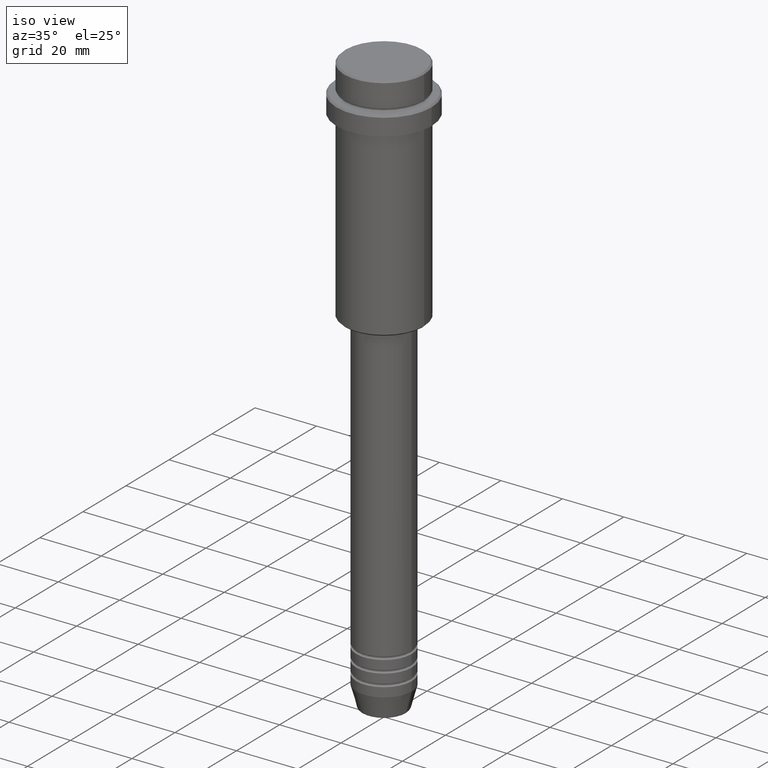
[diagram: clean part render]
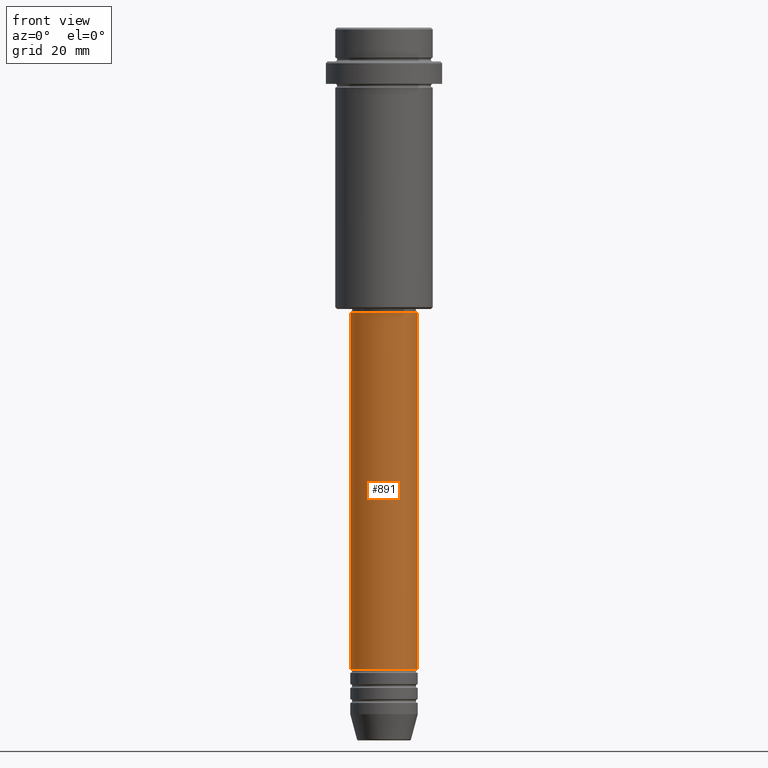
[diagram: tour spotlight — one face highlighted and labeled with its STEP entity id]
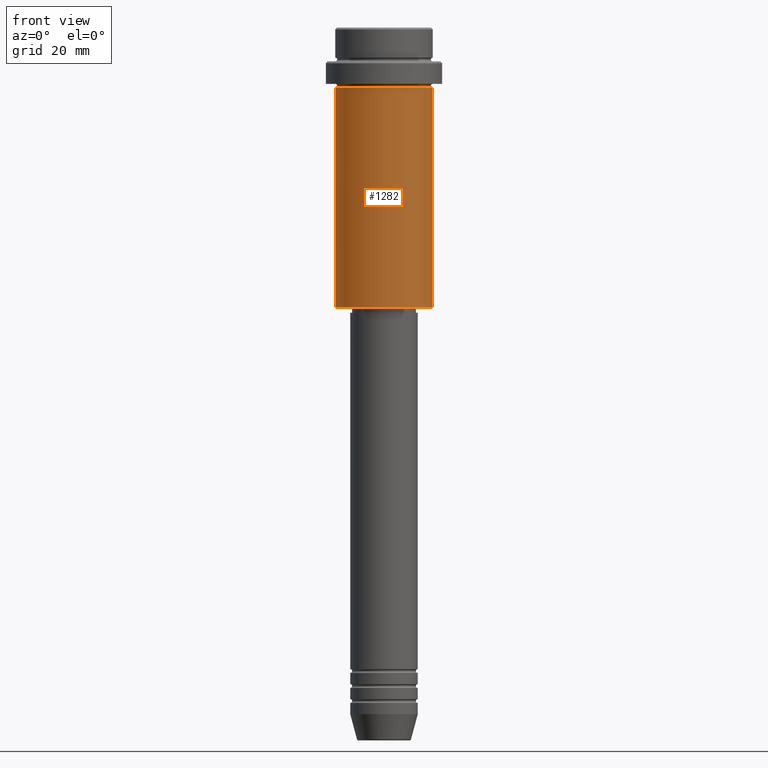
[diagram: tour spotlight — one face highlighted and labeled with its STEP entity id]
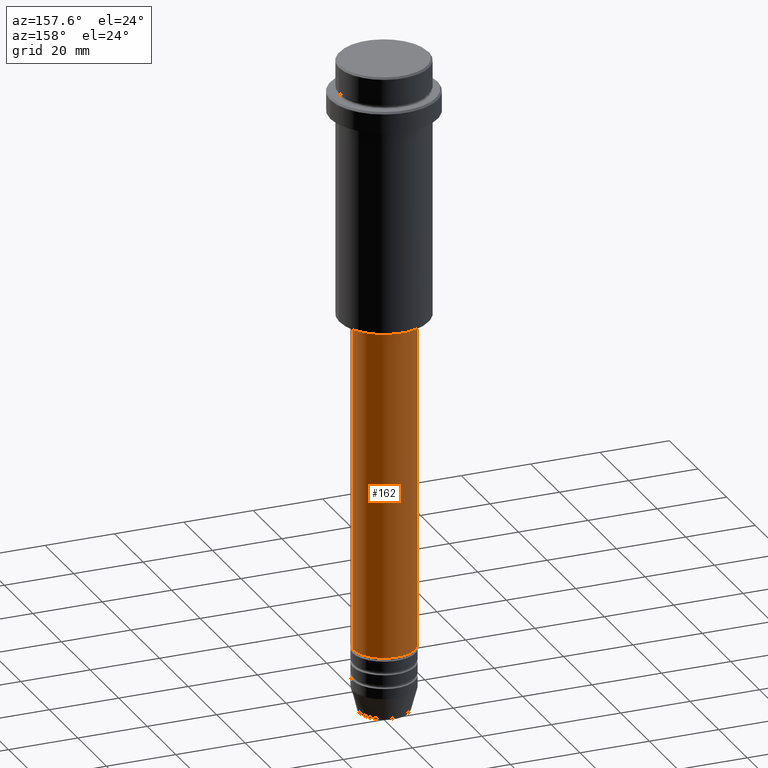
[diagram: tour spotlight — one face highlighted and labeled with its STEP entity id]
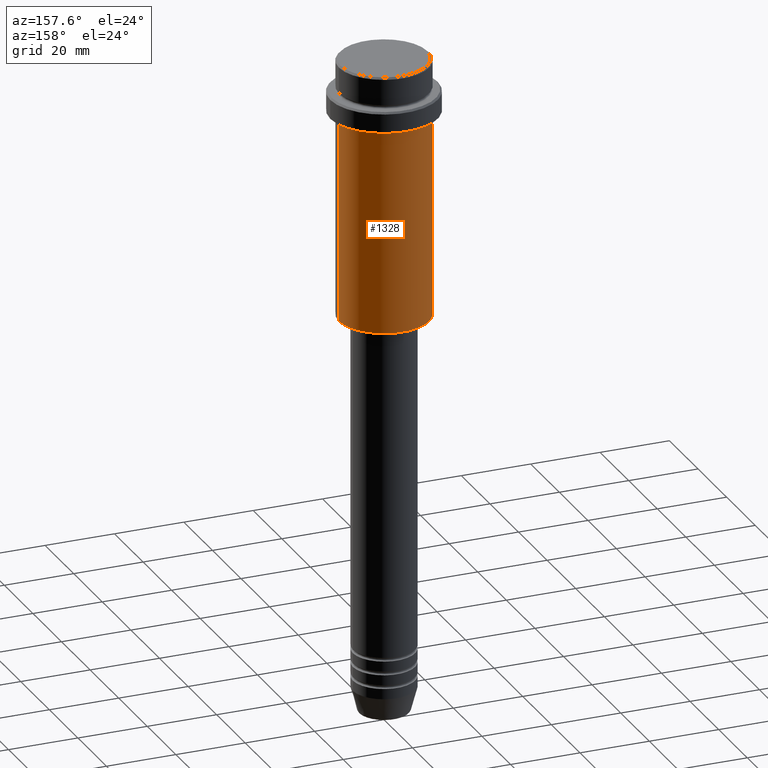
[diagram: tour spotlight — one face highlighted and labeled with its STEP entity id]
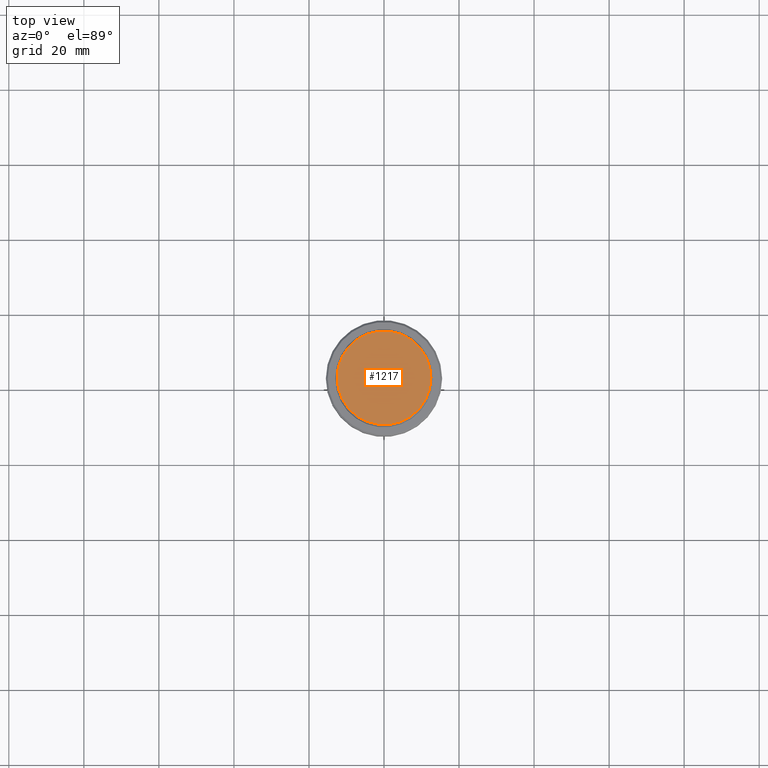
[diagram: tour spotlight — one face highlighted and labeled with its STEP entity id]
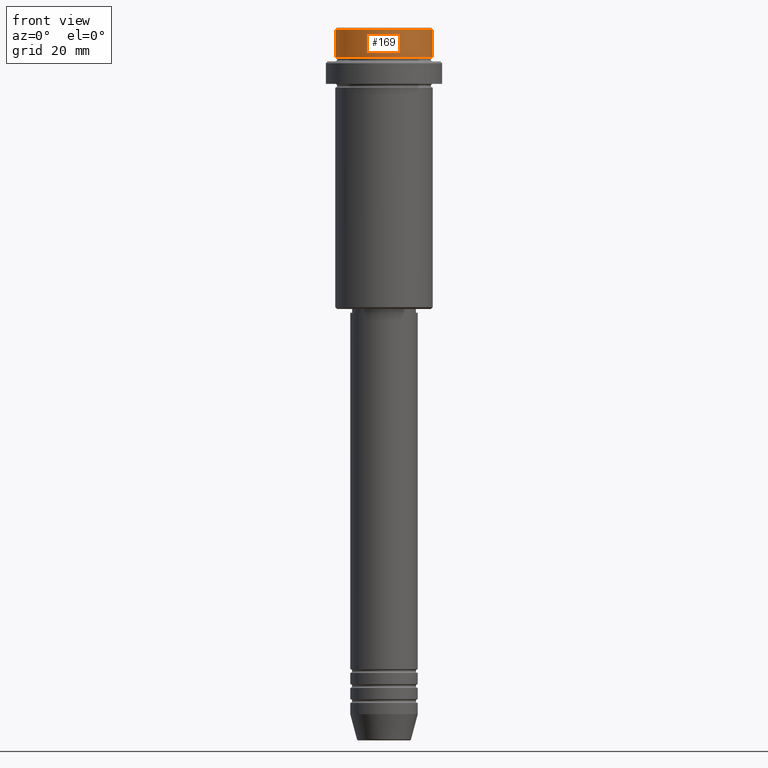
[diagram: tour spotlight — one face highlighted and labeled with its STEP entity id]
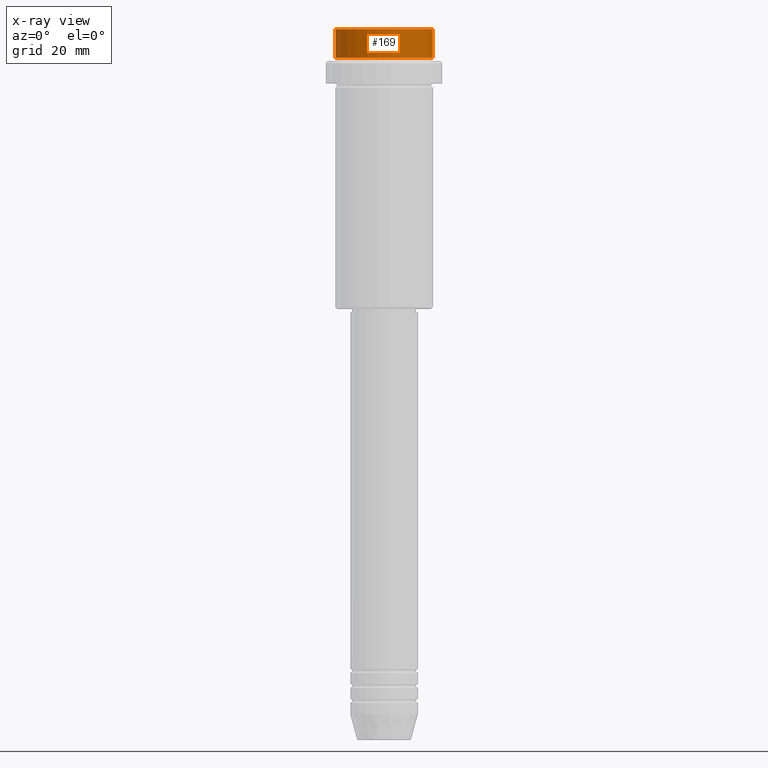
[diagram: x-ray of the same camera — body ghosted, this tour face saturated]
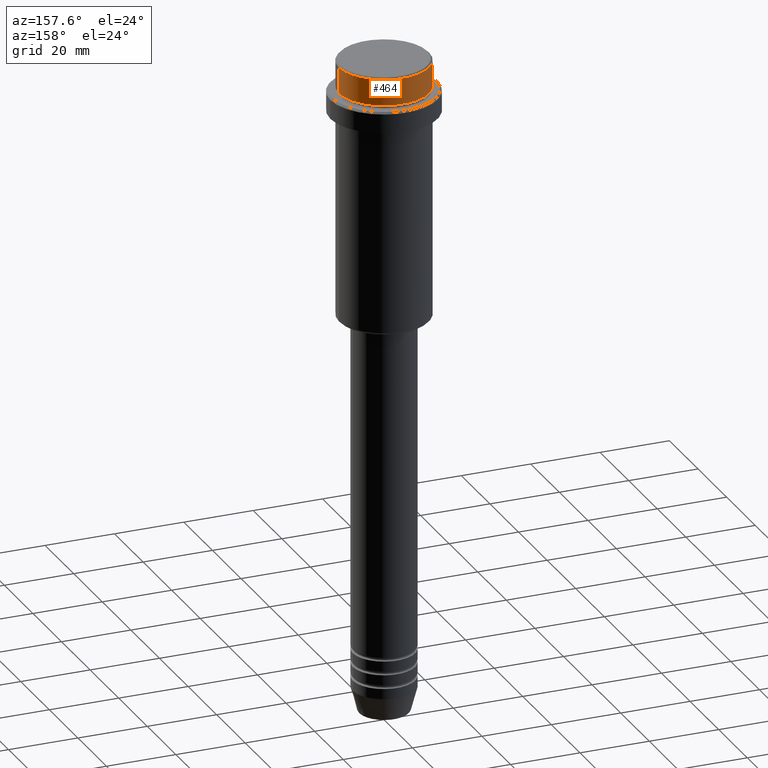
[diagram: tour spotlight — one face highlighted and labeled with its STEP entity id]
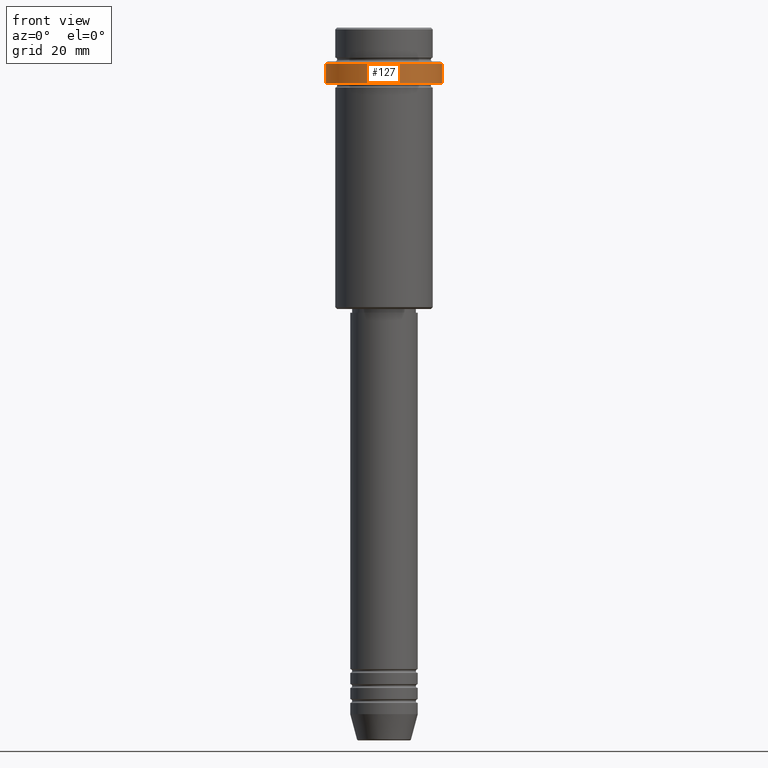
[diagram: tour spotlight — one face highlighted and labeled with its STEP entity id]
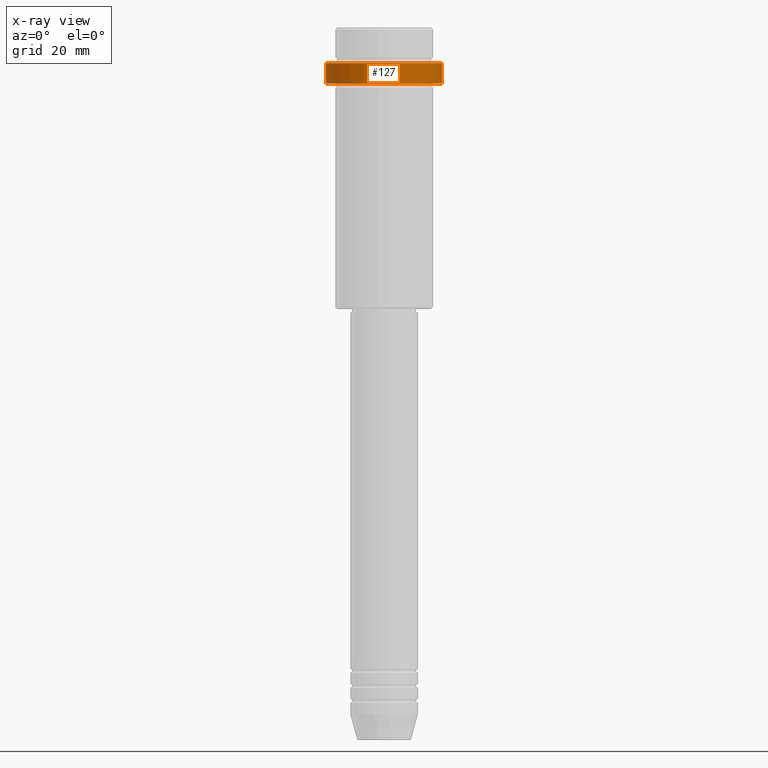
[diagram: x-ray of the same camera — body ghosted, this tour face saturated]
A machine part: a face-by-face anatomy tour. The part has 52 B-rep faces; the first image is the clean iso view, then the 8 largest visible faces are spotlighted one at a time (largest first), each with its STEP entity span.

Face 1 — front view, entity #891. In plain terms, the highlighted cylindrical surface (edge-blend (fillet) strip) has radius 9 mm, axis along (-0, -0, 1).
Definition (entity closure, byte-faithful):
#53 = CARTESIAN_POINT ( 'NONE',  ( 0.000000000000000000, 0.000000000000000000, -76.00000000000001421 ) ) ;
#142 = LINE ( 'NONE', #806, #608 ) ;
#145 = ORIENTED_EDGE ( 'NONE', *, *, #456, .F. ) ;
#185 = EDGE_LOOP ( 'NONE', ( #145, #928, #734, #1365 ) ) ;
#206 = EDGE_CURVE ( 'NONE', #576, #395, #584, .T. ) ;
#207 = EDGE_CURVE ( 'NONE', #1271, #395, #912, .T. ) ;
#292 = AXIS2_PLACEMENT_3D ( 'NONE', #1011, #795, #339 ) ;
#339 = DIRECTION ( 'NONE',  ( 1.000000000000000000, 0.000000000000000000, 0.000000000000000000 ) ) ;
#361 = AXIS2_PLACEMENT_3D ( 'NONE', #53, #1265, #1135 ) ;
#395 = VERTEX_POINT ( 'NONE', #449 ) ;
#449 = CARTESIAN_POINT ( 'NONE',  ( 9.000000000000001776, 0.000000000000000000, -76.00000000000001421 ) ) ;
#456 = EDGE_CURVE ( 'NONE', #716, #1271, #142, .T. ) ;
#472 = DIRECTION ( 'NONE',  ( -0.000000000000000000, -0.000000000000000000, 1.000000000000000000 ) ) ;
#491 = DIRECTION ( 'NONE',  ( -0.000000000000000000, -0.000000000000000000, 1.000000000000000000 ) ) ;
#514 = CARTESIAN_POINT ( 'NONE',  ( 9.000000000000000000, 0.000000000000000000, -170.9999999999999147 ) ) ;
#567 = CYLINDRICAL_SURFACE ( 'NONE', #292, 9.000000000000001776 ) ;
#576 = VERTEX_POINT ( 'NONE', #514 ) ;
#584 = LINE ( 'NONE', #817, #720 ) ;
#608 = VECTOR ( 'NONE', #472, 1000.000000000000000 ) ;
#716 = VERTEX_POINT ( 'NONE', #1083 ) ;
#720 = VECTOR ( 'NONE', #491, 1000.000000000000000 ) ;
#734 = ORIENTED_EDGE ( 'NONE', *, *, #206, .T. ) ;
#781 = EDGE_CURVE ( 'NONE', #716, #576, #1308, .T. ) ;
#795 = DIRECTION ( 'NONE',  ( -0.000000000000000000, -0.000000000000000000, 1.000000000000000000 ) ) ;
#806 = CARTESIAN_POINT ( 'NONE',  ( -9.000000000000001776, 1.102182119232617911E-15, 0.000000000000000000 ) ) ;
#817 = CARTESIAN_POINT ( 'NONE',  ( 9.000000000000001776, 0.000000000000000000, 0.000000000000000000 ) ) ;
#859 = DIRECTION ( 'NONE',  ( 1.000000000000000000, 0.000000000000000000, 0.000000000000000000 ) ) ;
#891 = ADVANCED_FACE ( 'NONE', ( #1018 ), #567, .T. ) ;
#912 = CIRCLE ( 'NONE', #361, 9.000000000000001776 ) ;
#928 = ORIENTED_EDGE ( 'NONE', *, *, #781, .T. ) ;
#1011 = CARTESIAN_POINT ( 'NONE',  ( 0.000000000000000000, 0.000000000000000000, 0.000000000000000000 ) ) ;
#1018 = FACE_OUTER_BOUND ( 'NONE', #185, .T. ) ;
#1052 = AXIS2_PLACEMENT_3D ( 'NONE', #1413, #1206, #859 ) ;
#1083 = CARTESIAN_POINT ( 'NONE',  ( -9.000000000000000000, 1.102182119232617714E-15, -170.9999999999999147 ) ) ;
#1135 = DIRECTION ( 'NONE',  ( 1.000000000000000000, 0.000000000000000000, 0.000000000000000000 ) ) ;
#1206 = DIRECTION ( 'NONE',  ( -0.000000000000000000, -0.000000000000000000, 1.000000000000000000 ) ) ;
#1221 = CARTESIAN_POINT ( 'NONE',  ( -9.000000000000001776, 1.102182119232617911E-15, -76.00000000000001421 ) ) ;
#1265 = DIRECTION ( 'NONE',  ( -0.000000000000000000, -0.000000000000000000, 1.000000000000000000 ) ) ;
#1271 = VERTEX_POINT ( 'NONE', #1221 ) ;
#1308 = CIRCLE ( 'NONE', #1052, 9.000000000000000000 ) ;
#1365 = ORIENTED_EDGE ( 'NONE', *, *, #207, .F. ) ;
#1413 = CARTESIAN_POINT ( 'NONE',  ( 0.000000000000000000, 0.000000000000000000, -170.9999999999999147 ) ) ;

Face 2 — front view, entity #1282. In plain terms, the highlighted cylindrical surface (partial cylindrical patch) has radius 13 mm, axis along (-0, -0, 1).
Definition (entity closure, byte-faithful):
#79 = AXIS2_PLACEMENT_3D ( 'NONE', #950, #1085, #1409 ) ;
#100 = CARTESIAN_POINT ( 'NONE',  ( 13.00000000000000000, 0.000000000000000000, 0.000000000000000000 ) ) ;
#113 = DIRECTION ( 'NONE',  ( -0.000000000000000000, -0.000000000000000000, 1.000000000000000000 ) ) ;
#208 = CARTESIAN_POINT ( 'NONE',  ( -13.00000000000000000, 1.592040838891559095E-15, 0.000000000000000000 ) ) ;
#217 = ORIENTED_EDGE ( 'NONE', *, *, #268, .F. ) ;
#230 = CYLINDRICAL_SURFACE ( 'NONE', #851, 13.00000000000000000 ) ;
#264 = LINE ( 'NONE', #100, #939 ) ;
#268 = EDGE_CURVE ( 'NONE', #895, #948, #962, .T. ) ;
#324 = EDGE_CURVE ( 'NONE', #599, #505, #1261, .T. ) ;
#332 = ORIENTED_EDGE ( 'NONE', *, *, #324, .T. ) ;
#462 = CARTESIAN_POINT ( 'NONE',  ( -13.00000000000000000, 1.592040838891559095E-15, -16.00000000000000000 ) ) ;
#505 = VERTEX_POINT ( 'NONE', #926 ) ;
#525 = EDGE_CURVE ( 'NONE', #505, #948, #264, .T. ) ;
#540 = DIRECTION ( 'NONE',  ( -0.000000000000000000, -0.000000000000000000, 1.000000000000000000 ) ) ;
#570 = AXIS2_PLACEMENT_3D ( 'NONE', #639, #1068, #869 ) ;
#599 = VERTEX_POINT ( 'NONE', #712 ) ;
#639 = CARTESIAN_POINT ( 'NONE',  ( 0.000000000000000000, 0.000000000000000000, -74.50000000000001421 ) ) ;
#664 = CARTESIAN_POINT ( 'NONE',  ( 0.000000000000000000, 0.000000000000000000, 0.000000000000000000 ) ) ;
#712 = CARTESIAN_POINT ( 'NONE',  ( -13.00000000000000000, 1.592040838891559095E-15, -74.50000000000001421 ) ) ;
#851 = AXIS2_PLACEMENT_3D ( 'NONE', #664, #113, #1090 ) ;
#869 = DIRECTION ( 'NONE',  ( -1.000000000000000000, 0.000000000000000000, 0.000000000000000000 ) ) ;
#895 = VERTEX_POINT ( 'NONE', #462 ) ;
#921 = ORIENTED_EDGE ( 'NONE', *, *, #525, .T. ) ;
#926 = CARTESIAN_POINT ( 'NONE',  ( 13.00000000000000000, 0.000000000000000000, -74.50000000000001421 ) ) ;
#939 = VECTOR ( 'NONE', #540, 1000.000000000000000 ) ;
#948 = VERTEX_POINT ( 'NONE', #953 ) ;
#950 = CARTESIAN_POINT ( 'NONE',  ( 0.000000000000000000, 0.000000000000000000, -16.00000000000000000 ) ) ;
#953 = CARTESIAN_POINT ( 'NONE',  ( 13.00000000000000000, 0.000000000000000000, -16.00000000000000000 ) ) ;
#962 = CIRCLE ( 'NONE', #79, 13.00000000000000000 ) ;
#996 = FACE_OUTER_BOUND ( 'NONE', #1404, .T. ) ;
#1033 = VECTOR ( 'NONE', #1109, 1000.000000000000000 ) ;
#1068 = DIRECTION ( 'NONE',  ( -0.000000000000000000, -0.000000000000000000, 1.000000000000000000 ) ) ;
#1085 = DIRECTION ( 'NONE',  ( -0.000000000000000000, -0.000000000000000000, 1.000000000000000000 ) ) ;
#1090 = DIRECTION ( 'NONE',  ( 1.000000000000000000, 0.000000000000000000, 0.000000000000000000 ) ) ;
#1109 = DIRECTION ( 'NONE',  ( -0.000000000000000000, -0.000000000000000000, 1.000000000000000000 ) ) ;
#1175 = ORIENTED_EDGE ( 'NONE', *, *, #1367, .F. ) ;
#1201 = LINE ( 'NONE', #208, #1033 ) ;
#1261 = CIRCLE ( 'NONE', #570, 13.00000000000000000 ) ;
#1282 = ADVANCED_FACE ( 'NONE', ( #996 ), #230, .T. ) ;
#1367 = EDGE_CURVE ( 'NONE', #599, #895, #1201, .T. ) ;
#1404 = EDGE_LOOP ( 'NONE', ( #1175, #332, #921, #217 ) ) ;
#1409 = DIRECTION ( 'NONE',  ( 1.000000000000000000, 0.000000000000000000, 0.000000000000000000 ) ) ;

Face 3 — auxiliary view, entity #162. In plain terms, the highlighted cylindrical surface (edge-blend (fillet) strip) has radius 9 mm, axis along (-0, -0, 1).
Definition (entity closure, byte-faithful):
#54 = ORIENTED_EDGE ( 'NONE', *, *, #206, .F. ) ;
#142 = LINE ( 'NONE', #806, #608 ) ;
#162 = ADVANCED_FACE ( 'NONE', ( #261 ), #944, .T. ) ;
#206 = EDGE_CURVE ( 'NONE', #576, #395, #584, .T. ) ;
#261 = FACE_OUTER_BOUND ( 'NONE', #757, .T. ) ;
#318 = CIRCLE ( 'NONE', #609, 9.000000000000000000 ) ;
#373 = CARTESIAN_POINT ( 'NONE',  ( 0.000000000000000000, 0.000000000000000000, 0.000000000000000000 ) ) ;
#380 = DIRECTION ( 'NONE',  ( 1.000000000000000000, 0.000000000000000000, 0.000000000000000000 ) ) ;
#382 = CIRCLE ( 'NONE', #1374, 9.000000000000001776 ) ;
#395 = VERTEX_POINT ( 'NONE', #449 ) ;
#415 = DIRECTION ( 'NONE',  ( 1.000000000000000000, 0.000000000000000000, 0.000000000000000000 ) ) ;
#427 = AXIS2_PLACEMENT_3D ( 'NONE', #373, #1247, #380 ) ;
#449 = CARTESIAN_POINT ( 'NONE',  ( 9.000000000000001776, 0.000000000000000000, -76.00000000000001421 ) ) ;
#456 = EDGE_CURVE ( 'NONE', #716, #1271, #142, .T. ) ;
#472 = DIRECTION ( 'NONE',  ( -0.000000000000000000, -0.000000000000000000, 1.000000000000000000 ) ) ;
#491 = DIRECTION ( 'NONE',  ( -0.000000000000000000, -0.000000000000000000, 1.000000000000000000 ) ) ;
#514 = CARTESIAN_POINT ( 'NONE',  ( 9.000000000000000000, 0.000000000000000000, -170.9999999999999147 ) ) ;
#531 = DIRECTION ( 'NONE',  ( 1.000000000000000000, 0.000000000000000000, 0.000000000000000000 ) ) ;
#538 = DIRECTION ( 'NONE',  ( -0.000000000000000000, -0.000000000000000000, 1.000000000000000000 ) ) ;
#576 = VERTEX_POINT ( 'NONE', #514 ) ;
#584 = LINE ( 'NONE', #817, #720 ) ;
#608 = VECTOR ( 'NONE', #472, 1000.000000000000000 ) ;
#609 = AXIS2_PLACEMENT_3D ( 'NONE', #1089, #538, #415 ) ;
#647 = CARTESIAN_POINT ( 'NONE',  ( 0.000000000000000000, 0.000000000000000000, -76.00000000000001421 ) ) ;
#716 = VERTEX_POINT ( 'NONE', #1083 ) ;
#718 = EDGE_CURVE ( 'NONE', #395, #1271, #382, .T. ) ;
#720 = VECTOR ( 'NONE', #491, 1000.000000000000000 ) ;
#757 = EDGE_LOOP ( 'NONE', ( #1103, #1276, #782, #54 ) ) ;
#779 = EDGE_CURVE ( 'NONE', #576, #716, #318, .T. ) ;
#782 = ORIENTED_EDGE ( 'NONE', *, *, #718, .F. ) ;
#806 = CARTESIAN_POINT ( 'NONE',  ( -9.000000000000001776, 1.102182119232617911E-15, 0.000000000000000000 ) ) ;
#817 = CARTESIAN_POINT ( 'NONE',  ( 9.000000000000001776, 0.000000000000000000, 0.000000000000000000 ) ) ;
#944 = CYLINDRICAL_SURFACE ( 'NONE', #427, 9.000000000000001776 ) ;
#998 = DIRECTION ( 'NONE',  ( -0.000000000000000000, -0.000000000000000000, 1.000000000000000000 ) ) ;
#1083 = CARTESIAN_POINT ( 'NONE',  ( -9.000000000000000000, 1.102182119232617714E-15, -170.9999999999999147 ) ) ;
#1089 = CARTESIAN_POINT ( 'NONE',  ( 0.000000000000000000, 0.000000000000000000, -170.9999999999999147 ) ) ;
#1103 = ORIENTED_EDGE ( 'NONE', *, *, #779, .T. ) ;
#1221 = CARTESIAN_POINT ( 'NONE',  ( -9.000000000000001776, 1.102182119232617911E-15, -76.00000000000001421 ) ) ;
#1247 = DIRECTION ( 'NONE',  ( -0.000000000000000000, -0.000000000000000000, 1.000000000000000000 ) ) ;
#1271 = VERTEX_POINT ( 'NONE', #1221 ) ;
#1276 = ORIENTED_EDGE ( 'NONE', *, *, #456, .T. ) ;
#1374 = AXIS2_PLACEMENT_3D ( 'NONE', #647, #998, #531 ) ;

Face 4 — auxiliary view, entity #1328. In plain terms, the highlighted cylindrical surface (partial cylindrical patch) has radius 13 mm, axis along (-0, -0, 1).
Definition (entity closure, byte-faithful):
#11 = CARTESIAN_POINT ( 'NONE',  ( 0.000000000000000000, 0.000000000000000000, -74.50000000000001421 ) ) ;
#68 = CARTESIAN_POINT ( 'NONE',  ( 0.000000000000000000, 0.000000000000000000, -16.00000000000000000 ) ) ;
#100 = CARTESIAN_POINT ( 'NONE',  ( 13.00000000000000000, 0.000000000000000000, 0.000000000000000000 ) ) ;
#166 = DIRECTION ( 'NONE',  ( -0.000000000000000000, -0.000000000000000000, 1.000000000000000000 ) ) ;
#190 = ORIENTED_EDGE ( 'NONE', *, *, #1291, .T. ) ;
#197 = CARTESIAN_POINT ( 'NONE',  ( 0.000000000000000000, 0.000000000000000000, 0.000000000000000000 ) ) ;
#208 = CARTESIAN_POINT ( 'NONE',  ( -13.00000000000000000, 1.592040838891559095E-15, 0.000000000000000000 ) ) ;
#264 = LINE ( 'NONE', #100, #939 ) ;
#284 = EDGE_LOOP ( 'NONE', ( #190, #444, #833, #865 ) ) ;
#308 = CYLINDRICAL_SURFACE ( 'NONE', #704, 13.00000000000000000 ) ;
#444 = ORIENTED_EDGE ( 'NONE', *, *, #1367, .T. ) ;
#448 = FACE_OUTER_BOUND ( 'NONE', #284, .T. ) ;
#462 = CARTESIAN_POINT ( 'NONE',  ( -13.00000000000000000, 1.592040838891559095E-15, -16.00000000000000000 ) ) ;
#501 = AXIS2_PLACEMENT_3D ( 'NONE', #68, #166, #1174 ) ;
#505 = VERTEX_POINT ( 'NONE', #926 ) ;
#525 = EDGE_CURVE ( 'NONE', #505, #948, #264, .T. ) ;
#540 = DIRECTION ( 'NONE',  ( -0.000000000000000000, -0.000000000000000000, 1.000000000000000000 ) ) ;
#599 = VERTEX_POINT ( 'NONE', #712 ) ;
#704 = AXIS2_PLACEMENT_3D ( 'NONE', #197, #1401, #999 ) ;
#712 = CARTESIAN_POINT ( 'NONE',  ( -13.00000000000000000, 1.592040838891559095E-15, -74.50000000000001421 ) ) ;
#768 = DIRECTION ( 'NONE',  ( -0.000000000000000000, -0.000000000000000000, 1.000000000000000000 ) ) ;
#833 = ORIENTED_EDGE ( 'NONE', *, *, #1035, .F. ) ;
#865 = ORIENTED_EDGE ( 'NONE', *, *, #525, .F. ) ;
#895 = VERTEX_POINT ( 'NONE', #462 ) ;
#926 = CARTESIAN_POINT ( 'NONE',  ( 13.00000000000000000, 0.000000000000000000, -74.50000000000001421 ) ) ;
#939 = VECTOR ( 'NONE', #540, 1000.000000000000000 ) ;
#948 = VERTEX_POINT ( 'NONE', #953 ) ;
#953 = CARTESIAN_POINT ( 'NONE',  ( 13.00000000000000000, 0.000000000000000000, -16.00000000000000000 ) ) ;
#999 = DIRECTION ( 'NONE',  ( 1.000000000000000000, 0.000000000000000000, 0.000000000000000000 ) ) ;
#1014 = CIRCLE ( 'NONE', #501, 13.00000000000000000 ) ;
#1033 = VECTOR ( 'NONE', #1109, 1000.000000000000000 ) ;
#1035 = EDGE_CURVE ( 'NONE', #948, #895, #1014, .T. ) ;
#1054 = AXIS2_PLACEMENT_3D ( 'NONE', #11, #768, #1227 ) ;
#1109 = DIRECTION ( 'NONE',  ( -0.000000000000000000, -0.000000000000000000, 1.000000000000000000 ) ) ;
#1174 = DIRECTION ( 'NONE',  ( 1.000000000000000000, 0.000000000000000000, 0.000000000000000000 ) ) ;
#1201 = LINE ( 'NONE', #208, #1033 ) ;
#1227 = DIRECTION ( 'NONE',  ( -1.000000000000000000, 0.000000000000000000, 0.000000000000000000 ) ) ;
#1291 = EDGE_CURVE ( 'NONE', #505, #599, #1335, .T. ) ;
#1328 = ADVANCED_FACE ( 'NONE', ( #448 ), #308, .T. ) ;
#1335 = CIRCLE ( 'NONE', #1054, 13.00000000000000000 ) ;
#1367 = EDGE_CURVE ( 'NONE', #599, #895, #1201, .T. ) ;
#1401 = DIRECTION ( 'NONE',  ( -0.000000000000000000, -0.000000000000000000, 1.000000000000000000 ) ) ;

Face 5 — top view, entity #1217. In plain terms, the highlighted planar face has unit normal (0, -0, 1).
Definition (entity closure, byte-faithful):
#40 = VERTEX_POINT ( 'NONE', #668 ) ;
#41 = DIRECTION ( 'NONE',  ( 1.000000000000000000, 0.000000000000000000, 0.000000000000000000 ) ) ;
#122 = EDGE_CURVE ( 'NONE', #40, #537, #516, .T. ) ;
#223 = CIRCLE ( 'NONE', #1219, 12.50000000000004086 ) ;
#256 = ORIENTED_EDGE ( 'NONE', *, *, #122, .T. ) ;
#266 = DIRECTION ( 'NONE',  ( -0.000000000000000000, -0.000000000000000000, 1.000000000000000000 ) ) ;
#386 = AXIS2_PLACEMENT_3D ( 'NONE', #765, #1303, #1319 ) ;
#438 = PLANE ( 'NONE',  #386 ) ;
#466 = DIRECTION ( 'NONE',  ( -0.000000000000000000, -0.000000000000000000, 1.000000000000000000 ) ) ;
#516 = CIRCLE ( 'NONE', #983, 12.50000000000004086 ) ;
#537 = VERTEX_POINT ( 'NONE', #880 ) ;
#603 = CARTESIAN_POINT ( 'NONE',  ( 0.000000000000000000, 0.000000000000000000, 0.000000000000000000 ) ) ;
#668 = CARTESIAN_POINT ( 'NONE',  ( -12.50000000000004086, 0.000000000000000000, 0.000000000000000000 ) ) ;
#675 = CARTESIAN_POINT ( 'NONE',  ( 0.000000000000000000, 0.000000000000000000, 0.000000000000000000 ) ) ;
#698 = ORIENTED_EDGE ( 'NONE', *, *, #835, .T. ) ;
#765 = CARTESIAN_POINT ( 'NONE',  ( 0.000000000000000000, 0.000000000000000000, 0.000000000000000000 ) ) ;
#835 = EDGE_CURVE ( 'NONE', #537, #40, #223, .T. ) ;
#864 = FACE_OUTER_BOUND ( 'NONE', #991, .T. ) ;
#880 = CARTESIAN_POINT ( 'NONE',  ( 12.50000000000004086, 1.561424668912877675E-15, 0.000000000000000000 ) ) ;
#983 = AXIS2_PLACEMENT_3D ( 'NONE', #603, #266, #1040 ) ;
#991 = EDGE_LOOP ( 'NONE', ( #256, #698 ) ) ;
#1040 = DIRECTION ( 'NONE',  ( 1.000000000000000000, 0.000000000000000000, 0.000000000000000000 ) ) ;
#1217 = ADVANCED_FACE ( 'NONE', ( #864 ), #438, .T. ) ;
#1219 = AXIS2_PLACEMENT_3D ( 'NONE', #675, #466, #41 ) ;
#1303 = DIRECTION ( 'NONE',  ( 0.000000000000000000, -0.000000000000000000, 1.000000000000000000 ) ) ;
#1319 = DIRECTION ( 'NONE',  ( 1.000000000000000000, 0.000000000000000000, 0.000000000000000000 ) ) ;

Face 6 — front view, entity #169. An x-ray twin of the same camera follows (body ghosted, this face saturated) — the face is partly hidden behind the body. In plain terms, the highlighted cylindrical surface (partial cylindrical patch) has radius 13 mm, axis along (-0, -0, 1).
Definition (entity closure, byte-faithful):
#32 = LINE ( 'NONE', #1318, #1278 ) ;
#45 = AXIS2_PLACEMENT_3D ( 'NONE', #648, #638, #1189 ) ;
#73 = DIRECTION ( 'NONE',  ( 1.000000000000000000, 0.000000000000000000, 0.000000000000000000 ) ) ;
#99 = EDGE_CURVE ( 'NONE', #975, #1399, #32, .T. ) ;
#111 = EDGE_CURVE ( 'NONE', #112, #909, #1323, .T. ) ;
#112 = VERTEX_POINT ( 'NONE', #702 ) ;
#141 = CARTESIAN_POINT ( 'NONE',  ( -12.99999999999999822, 1.592040838891558898E-15, -0.4999999999999761302 ) ) ;
#144 = DIRECTION ( 'NONE',  ( 1.000000000000000000, 0.000000000000000000, 0.000000000000000000 ) ) ;
#150 = DIRECTION ( 'NONE',  ( -0.000000000000000000, -0.000000000000000000, 1.000000000000000000 ) ) ;
#169 = ADVANCED_FACE ( 'NONE', ( #825 ), #1377, .T. ) ;
#193 = VECTOR ( 'NONE', #802, 1000.000000000000000 ) ;
#199 = CIRCLE ( 'NONE', #943, 12.99999999999999822 ) ;
#288 = EDGE_LOOP ( 'NONE', ( #398, #856, #595, #759 ) ) ;
#330 = DIRECTION ( 'NONE',  ( -0.000000000000000000, -0.000000000000000000, 1.000000000000000000 ) ) ;
#398 = ORIENTED_EDGE ( 'NONE', *, *, #111, .F. ) ;
#423 = CARTESIAN_POINT ( 'NONE',  ( 12.99999999999999822, 0.000000000000000000, -0.4999999999999761302 ) ) ;
#453 = AXIS2_PLACEMENT_3D ( 'NONE', #1140, #150, #144 ) ;
#595 = ORIENTED_EDGE ( 'NONE', *, *, #99, .T. ) ;
#638 = DIRECTION ( 'NONE',  ( -0.000000000000000000, -0.000000000000000000, 1.000000000000000000 ) ) ;
#648 = CARTESIAN_POINT ( 'NONE',  ( 0.000000000000000000, 0.000000000000000000, -7.999999999999998224 ) ) ;
#702 = CARTESIAN_POINT ( 'NONE',  ( -12.99999999999999822, 1.592040838891558898E-15, -7.999999999999998224 ) ) ;
#759 = ORIENTED_EDGE ( 'NONE', *, *, #1045, .T. ) ;
#802 = DIRECTION ( 'NONE',  ( -0.000000000000000000, -0.000000000000000000, 1.000000000000000000 ) ) ;
#825 = FACE_OUTER_BOUND ( 'NONE', #288, .T. ) ;
#856 = ORIENTED_EDGE ( 'NONE', *, *, #1354, .T. ) ;
#909 = VERTEX_POINT ( 'NONE', #141 ) ;
#943 = AXIS2_PLACEMENT_3D ( 'NONE', #1065, #1267, #73 ) ;
#975 = VERTEX_POINT ( 'NONE', #1143 ) ;
#1045 = EDGE_CURVE ( 'NONE', #1399, #909, #199, .T. ) ;
#1065 = CARTESIAN_POINT ( 'NONE',  ( 0.000000000000000000, 0.000000000000000000, -0.4999999999999761302 ) ) ;
#1140 = CARTESIAN_POINT ( 'NONE',  ( 0.000000000000000000, 0.000000000000000000, 0.000000000000000000 ) ) ;
#1143 = CARTESIAN_POINT ( 'NONE',  ( 12.99999999999999822, 0.000000000000000000, -7.999999999999998224 ) ) ;
#1189 = DIRECTION ( 'NONE',  ( 1.000000000000000000, 0.000000000000000000, 0.000000000000000000 ) ) ;
#1197 = CIRCLE ( 'NONE', #45, 12.99999999999999822 ) ;
#1257 = CARTESIAN_POINT ( 'NONE',  ( -12.99999999999999822, 1.592040838891558898E-15, 0.000000000000000000 ) ) ;
#1267 = DIRECTION ( 'NONE',  ( 0.000000000000000000, 0.000000000000000000, -1.000000000000000000 ) ) ;
#1278 = VECTOR ( 'NONE', #330, 1000.000000000000000 ) ;
#1318 = CARTESIAN_POINT ( 'NONE',  ( 12.99999999999999822, 0.000000000000000000, 0.000000000000000000 ) ) ;
#1323 = LINE ( 'NONE', #1257, #193 ) ;
#1354 = EDGE_CURVE ( 'NONE', #112, #975, #1197, .T. ) ;
#1377 = CYLINDRICAL_SURFACE ( 'NONE', #453, 12.99999999999999822 ) ;
#1399 = VERTEX_POINT ( 'NONE', #423 ) ;

Face 7 — auxiliary view, entity #464. In plain terms, the highlighted cylindrical surface (partial cylindrical patch) has radius 13 mm, axis along (-0, -0, 1).
Definition (entity closure, byte-faithful):
#32 = LINE ( 'NONE', #1318, #1278 ) ;
#69 = ORIENTED_EDGE ( 'NONE', *, *, #731, .T. ) ;
#99 = EDGE_CURVE ( 'NONE', #975, #1399, #32, .T. ) ;
#111 = EDGE_CURVE ( 'NONE', #112, #909, #1323, .T. ) ;
#112 = VERTEX_POINT ( 'NONE', #702 ) ;
#141 = CARTESIAN_POINT ( 'NONE',  ( -12.99999999999999822, 1.592040838891558898E-15, -0.4999999999999761302 ) ) ;
#171 = AXIS2_PLACEMENT_3D ( 'NONE', #484, #1362, #1254 ) ;
#193 = VECTOR ( 'NONE', #802, 1000.000000000000000 ) ;
#205 = DIRECTION ( 'NONE',  ( 0.000000000000000000, 0.000000000000000000, -1.000000000000000000 ) ) ;
#225 = DIRECTION ( 'NONE',  ( 1.000000000000000000, 0.000000000000000000, 0.000000000000000000 ) ) ;
#315 = DIRECTION ( 'NONE',  ( 1.000000000000000000, 0.000000000000000000, 0.000000000000000000 ) ) ;
#330 = DIRECTION ( 'NONE',  ( -0.000000000000000000, -0.000000000000000000, 1.000000000000000000 ) ) ;
#423 = CARTESIAN_POINT ( 'NONE',  ( 12.99999999999999822, 0.000000000000000000, -0.4999999999999761302 ) ) ;
#429 = CIRCLE ( 'NONE', #171, 12.99999999999999822 ) ;
#464 = ADVANCED_FACE ( 'NONE', ( #1250 ), #687, .T. ) ;
#484 = CARTESIAN_POINT ( 'NONE',  ( 0.000000000000000000, 0.000000000000000000, -7.999999999999998224 ) ) ;
#520 = CIRCLE ( 'NONE', #941, 12.99999999999999822 ) ;
#521 = EDGE_CURVE ( 'NONE', #975, #112, #429, .T. ) ;
#687 = CYLINDRICAL_SURFACE ( 'NONE', #796, 12.99999999999999822 ) ;
#702 = CARTESIAN_POINT ( 'NONE',  ( -12.99999999999999822, 1.592040838891558898E-15, -7.999999999999998224 ) ) ;
#731 = EDGE_CURVE ( 'NONE', #909, #1399, #520, .T. ) ;
#796 = AXIS2_PLACEMENT_3D ( 'NONE', #894, #1110, #225 ) ;
#802 = DIRECTION ( 'NONE',  ( -0.000000000000000000, -0.000000000000000000, 1.000000000000000000 ) ) ;
#876 = ORIENTED_EDGE ( 'NONE', *, *, #111, .T. ) ;
#894 = CARTESIAN_POINT ( 'NONE',  ( 0.000000000000000000, 0.000000000000000000, 0.000000000000000000 ) ) ;
#909 = VERTEX_POINT ( 'NONE', #141 ) ;
#941 = AXIS2_PLACEMENT_3D ( 'NONE', #1315, #205, #315 ) ;
#957 = ORIENTED_EDGE ( 'NONE', *, *, #99, .F. ) ;
#975 = VERTEX_POINT ( 'NONE', #1143 ) ;
#1110 = DIRECTION ( 'NONE',  ( -0.000000000000000000, -0.000000000000000000, 1.000000000000000000 ) ) ;
#1143 = CARTESIAN_POINT ( 'NONE',  ( 12.99999999999999822, 0.000000000000000000, -7.999999999999998224 ) ) ;
#1250 = FACE_OUTER_BOUND ( 'NONE', #1370, .T. ) ;
#1254 = DIRECTION ( 'NONE',  ( 1.000000000000000000, 0.000000000000000000, 0.000000000000000000 ) ) ;
#1257 = CARTESIAN_POINT ( 'NONE',  ( -12.99999999999999822, 1.592040838891558898E-15, 0.000000000000000000 ) ) ;
#1278 = VECTOR ( 'NONE', #330, 1000.000000000000000 ) ;
#1287 = ORIENTED_EDGE ( 'NONE', *, *, #521, .T. ) ;
#1315 = CARTESIAN_POINT ( 'NONE',  ( 0.000000000000000000, 0.000000000000000000, -0.4999999999999761302 ) ) ;
#1318 = CARTESIAN_POINT ( 'NONE',  ( 12.99999999999999822, 0.000000000000000000, 0.000000000000000000 ) ) ;
#1323 = LINE ( 'NONE', #1257, #193 ) ;
#1362 = DIRECTION ( 'NONE',  ( -0.000000000000000000, -0.000000000000000000, 1.000000000000000000 ) ) ;
#1370 = EDGE_LOOP ( 'NONE', ( #1287, #876, #69, #957 ) ) ;
#1399 = VERTEX_POINT ( 'NONE', #423 ) ;

Face 8 — front view, entity #127. An x-ray twin of the same camera follows (body ghosted, this face saturated) — the face is partly hidden behind the body. In plain terms, the highlighted cylindrical surface (partial cylindrical patch) has radius 15.5 mm, axis along (-0, -0, 1).
Definition (entity closure, byte-faithful):
#48 = CYLINDRICAL_SURFACE ( 'NONE', #377, 15.50000000000000000 ) ;
#115 = DIRECTION ( 'NONE',  ( 0.000000000000000000, 0.000000000000000000, -1.000000000000000000 ) ) ;
#127 = ADVANCED_FACE ( 'NONE', ( #1368 ), #48, .T. ) ;
#159 = DIRECTION ( 'NONE',  ( -0.000000000000000000, -0.000000000000000000, 1.000000000000000000 ) ) ;
#220 = CARTESIAN_POINT ( 'NONE',  ( -15.50000000000000000, 1.898202538678397557E-15, -9.500000000000014211 ) ) ;
#265 = VECTOR ( 'NONE', #424, 1000.000000000000000 ) ;
#269 = EDGE_CURVE ( 'NONE', #630, #789, #1387, .T. ) ;
#333 = DIRECTION ( 'NONE',  ( 1.000000000000000000, 0.000000000000000000, 0.000000000000000000 ) ) ;
#363 = VECTOR ( 'NONE', #889, 1000.000000000000000 ) ;
#377 = AXIS2_PLACEMENT_3D ( 'NONE', #708, #159, #695 ) ;
#424 = DIRECTION ( 'NONE',  ( -0.000000000000000000, -0.000000000000000000, 1.000000000000000000 ) ) ;
#431 = CARTESIAN_POINT ( 'NONE',  ( 15.50000000000000000, 0.000000000000000000, -9.500000000000014211 ) ) ;
#554 = CARTESIAN_POINT ( 'NONE',  ( -15.50000000000000000, 1.898202538678397557E-15, 0.000000000000000000 ) ) ;
#630 = VERTEX_POINT ( 'NONE', #1059 ) ;
#678 = EDGE_CURVE ( 'NONE', #814, #630, #1125, .T. ) ;
#688 = EDGE_CURVE ( 'NONE', #789, #705, #823, .T. ) ;
#695 = DIRECTION ( 'NONE',  ( 1.000000000000000000, 0.000000000000000000, 0.000000000000000000 ) ) ;
#705 = VERTEX_POINT ( 'NONE', #220 ) ;
#708 = CARTESIAN_POINT ( 'NONE',  ( 0.000000000000000000, 0.000000000000000000, 0.000000000000000000 ) ) ;
#739 = ORIENTED_EDGE ( 'NONE', *, *, #688, .T. ) ;
#741 = EDGE_LOOP ( 'NONE', ( #954, #1162, #1058, #739 ) ) ;
#789 = VERTEX_POINT ( 'NONE', #431 ) ;
#798 = AXIS2_PLACEMENT_3D ( 'NONE', #1073, #982, #333 ) ;
#814 = VERTEX_POINT ( 'NONE', #1004 ) ;
#823 = CIRCLE ( 'NONE', #1283, 15.50000000000000000 ) ;
#889 = DIRECTION ( 'NONE',  ( -0.000000000000000000, -0.000000000000000000, 1.000000000000000000 ) ) ;
#954 = ORIENTED_EDGE ( 'NONE', *, *, #1256, .F. ) ;
#982 = DIRECTION ( 'NONE',  ( -0.000000000000000000, -0.000000000000000000, 1.000000000000000000 ) ) ;
#1004 = CARTESIAN_POINT ( 'NONE',  ( -15.50000000000000000, 1.898202538678397557E-15, -15.00000000000000178 ) ) ;
#1058 = ORIENTED_EDGE ( 'NONE', *, *, #269, .T. ) ;
#1059 = CARTESIAN_POINT ( 'NONE',  ( 15.50000000000000000, 0.000000000000000000, -15.00000000000000178 ) ) ;
#1060 = CARTESIAN_POINT ( 'NONE',  ( 15.50000000000000000, 0.000000000000000000, 0.000000000000000000 ) ) ;
#1073 = CARTESIAN_POINT ( 'NONE',  ( 0.000000000000000000, 0.000000000000000000, -15.00000000000000178 ) ) ;
#1125 = CIRCLE ( 'NONE', #798, 15.50000000000000000 ) ;
#1162 = ORIENTED_EDGE ( 'NONE', *, *, #678, .T. ) ;
#1182 = DIRECTION ( 'NONE',  ( 1.000000000000000000, 0.000000000000000000, 0.000000000000000000 ) ) ;
#1256 = EDGE_CURVE ( 'NONE', #814, #705, #1324, .T. ) ;
#1283 = AXIS2_PLACEMENT_3D ( 'NONE', #1305, #115, #1182 ) ;
#1305 = CARTESIAN_POINT ( 'NONE',  ( 0.000000000000000000, 0.000000000000000000, -9.500000000000014211 ) ) ;
#1324 = LINE ( 'NONE', #554, #363 ) ;
#1368 = FACE_OUTER_BOUND ( 'NONE', #741, .T. ) ;
#1387 = LINE ( 'NONE', #1060, #265 ) ;